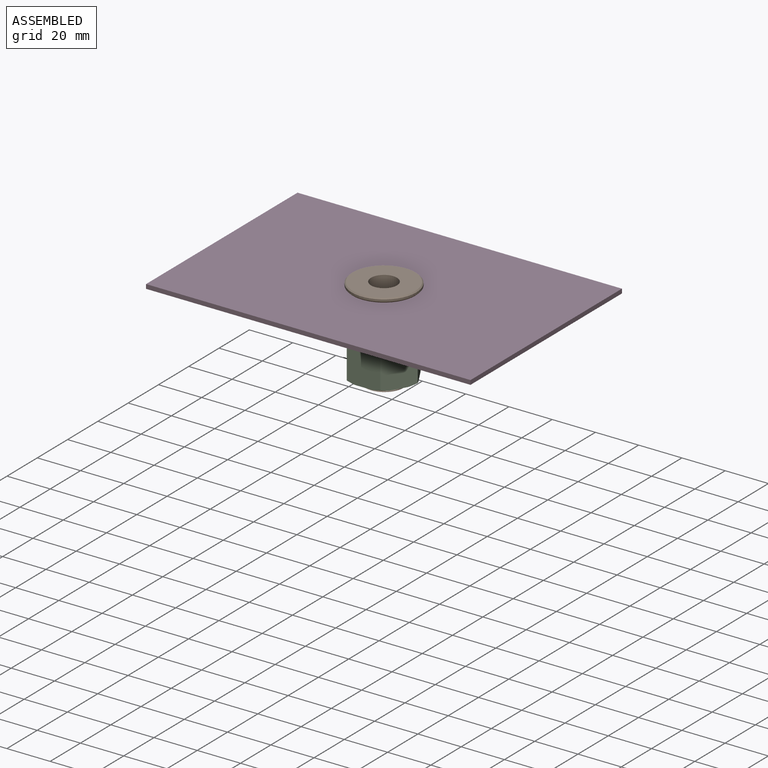
[diagram: assembled view]
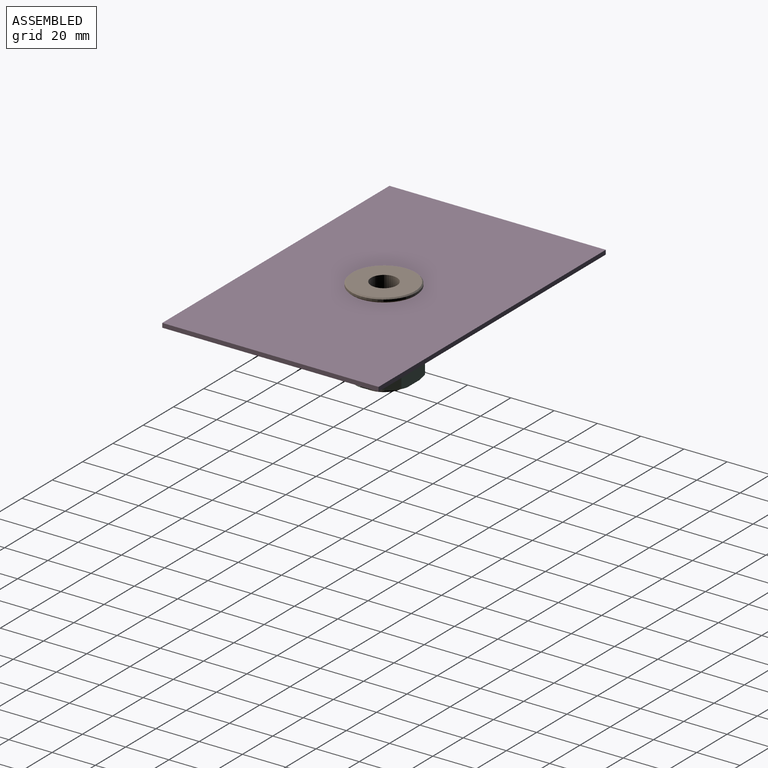
[diagram: assembled view, second angle]
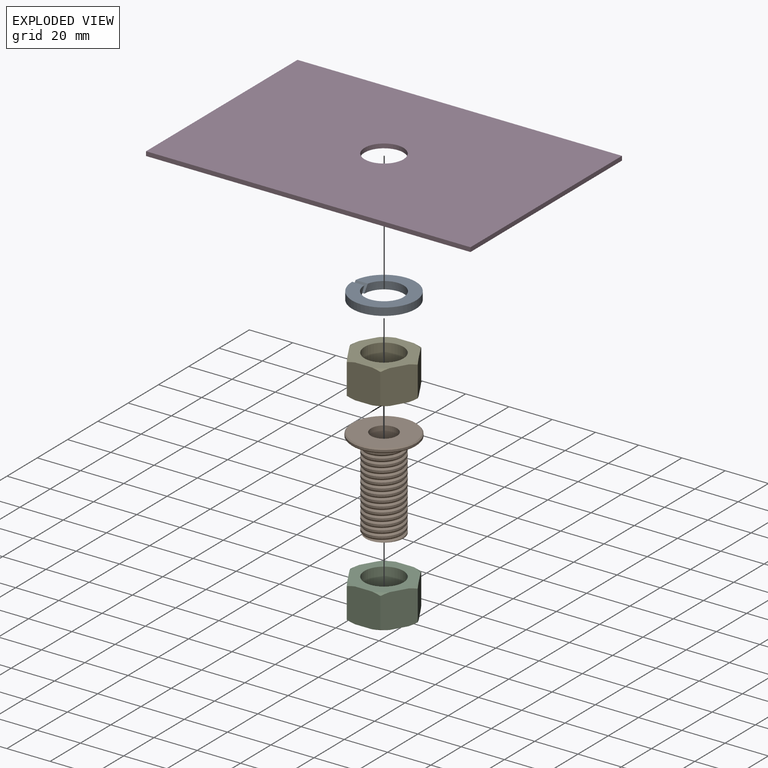
[diagram: exploded view]
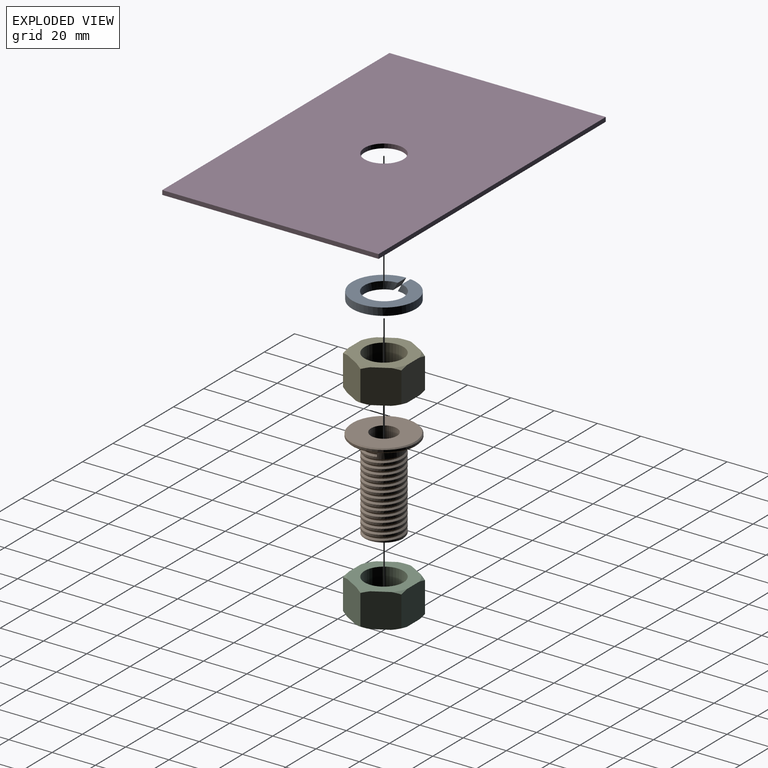
[diagram: exploded view, second angle]
ASSEMBLY  parts=5 mates=4
PART A: 6 faces, bbox 29.4x29.4x3.5 mm
  f0: plane 29.4x29.4mm, normal (0,0,1), area 407.3mm2, adj f1,f2,f4,f5
  f1: cylinder r=9.1mm len=18.2mm, axis (0,0,-1), area 193mm2, adj f0,f3,f4,f5
  f2: cylinder r=14.7mm len=29.4mm, axis (0,0,-1), area 316.2mm2, adj f0,f3,f4,f5
  f3: plane 29.4x29.4mm, normal (0,0,-1), area 407.3mm2, adj f1,f2,f4,f5
  f4: plane 5.84x3.51mm, normal (-0.87,0,0.5), area 22.7mm2, adj f0,f1,f2,f3
  f5: plane 5.84x3.51mm, normal (0.87,0,-0.5), area 22.7mm2, adj f0,f1,f2,f3
PART B: 28 faces, bbox 30.2x30.2x42.9 mm
  f0: cylinder r=6mm len=42mm, axis (0,0,-1), area 1583.4mm2, adj f16,f18
  f1: cylinder r=9mm len=18mm, axis (0,0,-1), area 264.2mm2, adj f15,f19,f20,f22,f24
  f2: cylinder r=9mm len=18mm, axis (0,0,-1), area 28.6mm2, adj f3,f16,f21,f22,f24,f25
  f3: cylinder r=9mm len=18mm, axis (0,0,-1), area 56.5mm2, adj f2,f4,f22,f24
  f4: cylinder r=9mm len=18mm, axis (0,0,-1), area 56.5mm2, adj f3,f5,f22,f24
  f5: cylinder r=9mm len=18mm, axis (0,0,-1), area 56.5mm2, adj f4,f6,f22,f24
  f6: cylinder r=9mm len=18mm, axis (0,0,-1), area 56.5mm2, adj f5,f7,f22,f24
  f7: cylinder r=9mm len=18mm, axis (0,0,-1), area 56.5mm2, adj f6,f8,f22,f24
  f8: cylinder r=9mm len=18mm, axis (0,0,-1), area 56.5mm2, adj f7,f9,f22,f24
  f9: cylinder r=9mm len=18mm, axis (0,0,-1), area 56.5mm2, adj f8,f10,f22,f24
  f10: cylinder r=9mm len=18mm, axis (0,0,-1), area 56.5mm2, adj f9,f11,f22,f24
  f11: cylinder r=9mm len=18mm, axis (0,0,-1), area 56.5mm2, adj f10,f12,f22,f24
  f12: cylinder r=9mm len=18mm, axis (0,0,-1), area 56.5mm2, adj f11,f13,f22,f24
  f13: cylinder r=9mm len=18mm, axis (0,0,-1), area 56.5mm2, adj f12,f14,f22,f24
  f14: cylinder r=9mm len=18mm, axis (0,0,-1), area 56.5mm2, adj f13,f15,f22,f24
  f15: cylinder r=9mm len=18mm, axis (0,0,-1), area 56.5mm2, adj f1,f14,f22,f24
  f16: plane 18.12x17.54mm, normal (0,0,-1), area 128.6mm2, adj f0,f2,f21,f22,f23,f24,f25
  f17: cylinder r=15mm len=30mm, axis (0,0,-1), area 94.2mm2, adj f26,f27
  f18: plane 29x29mm, normal (0,0,1), area 547.4mm2, adj f0,f27
  f19: plane 29x29mm, normal (0,0,-1), area 406.1mm2, adj f1,f26
  f20: plane 1.51x0.68mm, normal (0.31,-0.95,0), area 0.6mm2, adj f1,f22,f23,f24
  f21: plane 0.13x0.13mm, normal (-1,0,0), area 0mm2, adj f2,f16,f22
  f22: bspline ~37.61x18mm, area 709.3mm2, adj f1,f2,f3,f4,f5,f6,f7,f8
  f23: bspline ~36.81x16.69mm, area 248.6mm2, adj f16,f20,f22,f24
  f24: bspline ~36.84x18mm, area 692.2mm2, adj f1,f2,f3,f4,f5,f6,f7,f8
  f25: bspline ~12.62x6.15mm, area 0mm2, adj f2,f16,f24
  f26: cone r=15mm half-angle=45deg, axis (0,0,1), area 65.5mm2, adj f17,f19
  f27: cone r=14.5mm half-angle=45deg, axis (0,0,-1), area 65.5mm2, adj f17,f18
PART C: 21 faces, bbox 16.1x31.5x30.2 mm
  f0: plane 16.11x15.89mm, normal (0,0,-1), area 240.4mm2, adj f1,f5,f6,f7,f9,f11,f19,f20
  f1: plane 16.11x13.81mm, normal (0,0.87,-0.5), area 240.4mm2, adj f0,f2,f6,f7,f17,f18,f19,f20
  f2: plane 16.11x13.81mm, normal (0,0.87,0.5), area 240.4mm2, adj f1,f3,f6,f7,f15,f16,f17,f18
  f3: plane 16.11x15.89mm, normal (0,0,1), area 240.4mm2, adj f2,f4,f6,f7,f13,f14,f15,f16
  f4: plane 16.11x13.81mm, normal (0,-0.87,0.5), area 240.4mm2, adj f3,f5,f6,f7,f10,f12,f13,f14
  f5: plane 16.11x13.81mm, normal (0,-0.87,-0.5), area 240.4mm2, adj f0,f4,f6,f7,f9,f10,f11,f12
  f6: plane 28.18x27mm, normal (1,0,0), area 350mm2, adj f0,f1,f2,f3,f4,f5,f8,f11
  f7: plane 28.18x27mm, normal (-1,0,0), area 350mm2, adj f0,f1,f2,f3,f4,f5,f8,f9
  f8: cylinder r=9mm len=18mm, axis (-1,0,0), area 893.5mm2, adj f6,f7
  f9: cone r=14.09mm half-angle=60deg, axis (1,0,0), area 5.9mm2, adj f0,f5,f7
  f10: cone r=14.09mm half-angle=60deg, axis (1,0,0), area 5.9mm2, adj f4,f5,f7
  f11: cone r=14.09mm half-angle=60deg, axis (-1,0,0), area 5.9mm2, adj f0,f5,f6
  f12: cone r=14.09mm half-angle=60deg, axis (-1,0,0), area 5.9mm2, adj f4,f5,f6
  f13: cone r=14.09mm half-angle=60deg, axis (1,0,0), area 5.9mm2, adj f3,f4,f7
  f14: cone r=14.09mm half-angle=60deg, axis (-1,0,0), area 5.9mm2, adj f3,f4,f6
  f15: cone r=14.09mm half-angle=60deg, axis (1,0,0), area 5.9mm2, adj f2,f3,f7
  f16: cone r=14.09mm half-angle=60deg, axis (-1,0,0), area 5.9mm2, adj f2,f3,f6
  f17: cone r=14.09mm half-angle=60deg, axis (1,0,0), area 5.9mm2, adj f1,f2,f7
  f18: cone r=14.09mm half-angle=60deg, axis (-1,0,0), area 5.9mm2, adj f1,f2,f6
  f19: cone r=14.09mm half-angle=60deg, axis (1,0,0), area 5.9mm2, adj f0,f1,f7
  f20: cone r=14.09mm half-angle=60deg, axis (-1,0,0), area 5.9mm2, adj f0,f1,f6
PART D: 7 faces, bbox 150x100x2 mm
  f0: plane 150x100mm, normal (0,0,1), area 14745.5mm2, adj f1,f2,f3,f4,f6
  f1: plane 150x2mm, normal (0,-1,0), area 300mm2, adj f0,f2,f4,f5
  f2: plane 100x2mm, normal (1,0,0), area 200mm2, adj f0,f1,f3,f5
  f3: plane 150x2mm, normal (0,1,0), area 300mm2, adj f0,f2,f4,f5
  f4: plane 100x2mm, normal (-1,0,0), area 200mm2, adj f0,f1,f3,f5
  f5: plane 150x100mm, normal (0,0,-1), area 14745.5mm2, adj f1,f2,f3,f4,f6
  f6: cylinder r=9mm len=18mm, axis (0,0,-1), area 113.1mm2, adj f0,f5
PART E: same geometry as C
PLACE A rot(axis=(-0.71,0.71,0),180deg) t=(-68.51,-24.53,26.53)mm
PLACE B t=(-68.51,-24.53,-11.47)mm
PLACE C rot(axis=(0.58,-0.58,0.58),120deg) t=(-68.51,-24.53,-8.57)mm
PLACE D t=(-68.51,-24.53,26.53)mm fixed
PLACE E rot(axis=(0.58,-0.58,0.58),120deg) t=(-68.51,-24.53,7.23)mm
MATE fastened A.f1 <-> D.f6  axis (0,0,1) through (-68.51,-24.53,26.53)mm
MATE fastened B.f1 <-> D.f6  axis (0,0,-1) through (-68.51,-24.53,28.53)mm
MATE fastened E.f8 <-> A.f2  axis (0,0,1) through (-68.51,-24.53,23.03)mm
MATE fastened C.f8 <-> E.f9  axis (0,0,1) through (-68.51,-24.53,7.23)mm
